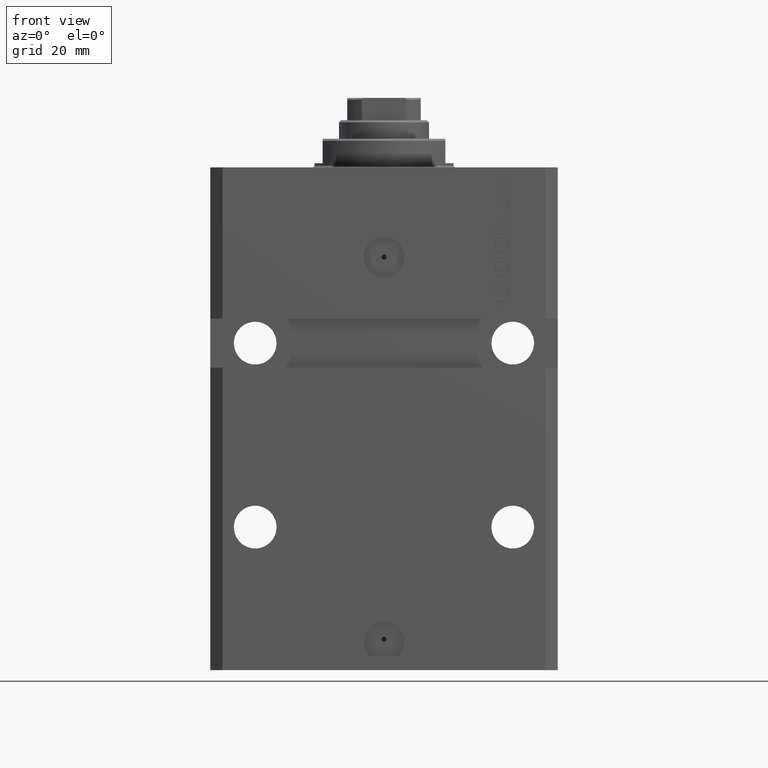
[diagram: clean part render]
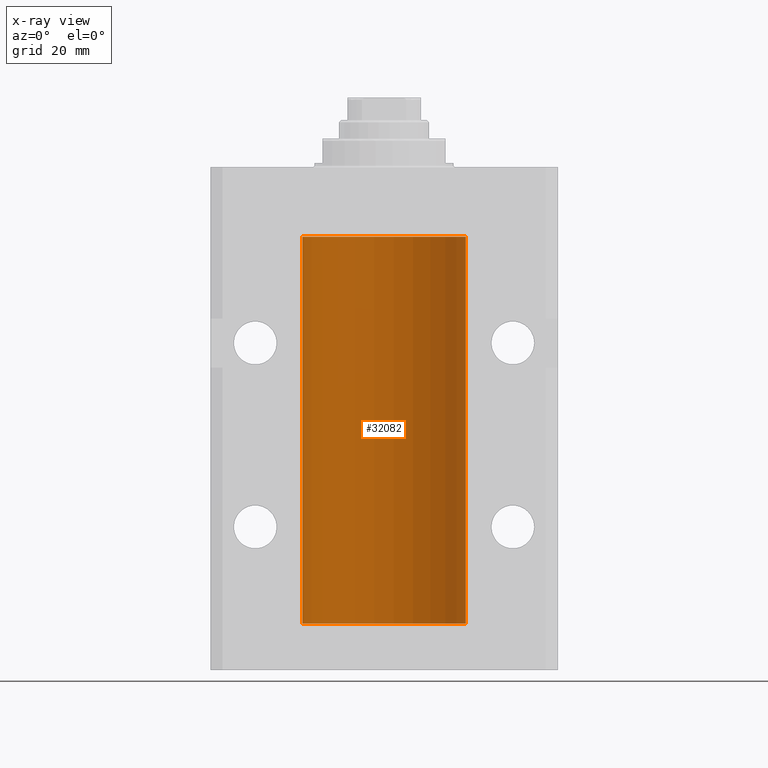
[diagram: x-ray — body ghosted, one internal face saturated and labeled with its STEP entity id]
A machine part, front view, then the same camera in x-ray: the body is ghosted and one INTERNAL B-rep face — a face not visible from any outside direction — is saturated and labeled: STEP entity #32082.
In plain terms, the highlighted cylindrical surface (partial cylindrical patch) has radius 20 mm, axis along (0, 0, 1).
Its self-contained STEP definition (entity closure, byte-faithful):
#114 = EDGE_CURVE ( 'NONE', #39670, #34580, #12778, .T. ) ;
#201 = VECTOR ( 'NONE', #36816, 1000.000000000000000 ) ;
#279 = CARTESIAN_POINT ( 'NONE',  ( 19.99769474220010679, 0.3253030616682399123, -23.44140633897632142 ) ) ;
#491 = ORIENTED_EDGE ( 'NONE', *, *, #42831, .F. ) ;
#1088 = DIRECTION ( 'NONE',  ( -0.000000000000000000, -0.000000000000000000, 1.000000000000000000 ) ) ;
#1198 = CARTESIAN_POINT ( 'NONE',  ( 19.99999999999999645, 0.08261455565447944904, -24.62499999999999289 ) ) ;
#1549 = VERTEX_POINT ( 'NONE', #23585 ) ;
#1672 = CARTESIAN_POINT ( 'NONE',  ( 20.00000000000000000, 2.480610556832390753E-15, -24.62500000000000000 ) ) ;
#1987 = LINE ( 'NONE', #38994, #12067 ) ;
#2161 = DIRECTION ( 'NONE',  ( 1.000000000000000000, 0.000000000000000000, 0.000000000000000000 ) ) ;
#2250 = DIRECTION ( 'NONE',  ( 1.000000000000000000, 0.000000000000000000, 0.000000000000000000 ) ) ;
#2469 = DIRECTION ( 'NONE',  ( -0.000000000000000000, -0.000000000000000000, 1.000000000000000000 ) ) ;
#4190 = CIRCLE ( 'NONE', #4965, 20.00000000000000000 ) ;
#4317 = VECTOR ( 'NONE', #45147, 1000.000000000000000 ) ;
#4401 = CARTESIAN_POINT ( 'NONE',  ( 19.99638788807192924, 0.3844440352705359998, -109.4994805898647883 ) ) ;
#4637 = B_SPLINE_CURVE_WITH_KNOTS ( 'NONE', 3,
 ( #8079, #18291, #26305, #279, #19247, #44325 ),
 .UNSPECIFIED., .F., .F.,
 ( 4, 2, 4 ),
 ( 0.0009772989342736271377, 0.001465726722058853775, 0.001954154509844080196 ),
 .UNSPECIFIED. ) ;
#4965 = AXIS2_PLACEMENT_3D ( 'NONE', #20651, #23814, #2161 ) ;
#5359 = CARTESIAN_POINT ( 'NONE',  ( 19.99947351343144675, 0.1636818329565332686, -24.60872855715644292 ) ) ;
#5378 = CARTESIAN_POINT ( 'NONE',  ( 19.99766100389833312, 0.3150982863324784944, -109.5459443824127987 ) ) ;
#5714 = VERTEX_POINT ( 'NONE', #40265 ) ;
#5871 = CIRCLE ( 'NONE', #15183, 20.00000000000000000 ) ;
#8079 = CARTESIAN_POINT ( 'NONE',  ( 19.99023198964909298, 0.6250000000081508134, -23.99999999999910472 ) ) ;
#8661 = LINE ( 'NONE', #41524, #4317 ) ;
#9470 = CARTESIAN_POINT ( 'NONE',  ( 19.99256353007439202, 0.5574106582031160828, -24.32639035180114817 ) ) ;
#9800 = FACE_OUTER_BOUND ( 'NONE', #46956, .T. ) ;
#10352 = VERTEX_POINT ( 'NONE', #14486 ) ;
#10848 = CARTESIAN_POINT ( 'NONE',  ( 20.00000000000010303, 3.555666352936568165E-13, -108.3749999999966747 ) ) ;
#11935 = CARTESIAN_POINT ( 'NONE',  ( 19.99023198964909298, 0.6250000000081574747, -108.9999999999991047 ) ) ;
#12067 = VECTOR ( 'NONE', #2469, 1000.000000000000000 ) ;
#12778 = LINE ( 'NONE', #19823, #38755 ) ;
#13057 = ORIENTED_EDGE ( 'NONE', *, *, #33081, .T. ) ;
#13339 = EDGE_CURVE ( 'NONE', #1549, #26252, #24671, .T. ) ;
#13624 = CARTESIAN_POINT ( 'NONE',  ( 20.00000000000010303, 3.555666352936568165E-13, -108.3749999999966747 ) ) ;
#13782 = ORIENTED_EDGE ( 'NONE', *, *, #13339, .T. ) ;
#13833 = ORIENTED_EDGE ( 'NONE', *, *, #29073, .F. ) ;
#13884 = ORIENTED_EDGE ( 'NONE', *, *, #18469, .T. ) ;
#13926 = CARTESIAN_POINT ( 'NONE',  ( 0.000000000000000000, 0.000000000000000000, -111.5999999999999943 ) ) ;
#14486 = CARTESIAN_POINT ( 'NONE',  ( 20.00000000000000000, -4.058908006348821872E-15, -109.6250000000000000 ) ) ;
#14711 = VERTEX_POINT ( 'NONE', #47260 ) ;
#15183 = AXIS2_PLACEMENT_3D ( 'NONE', #31517, #31029, #45646 ) ;
#15577 = CARTESIAN_POINT ( 'NONE',  ( 19.99947351343144319, 0.1636818329565372654, -109.6087285571564536 ) ) ;
#15984 = B_SPLINE_CURVE_WITH_KNOTS ( 'NONE', 3,
 ( #38214, #46232, #15577, #5378, #4401, #23106, #19471, #11935 ),
 .UNSPECIFIED., .F., .F.,
 ( 4, 2, 2, 4 ),
 ( 3.944467879762244826E-18, 0.0002443247335684012008, 0.0004886494671367983900, 0.0009772989342736221503 ),
 .UNSPECIFIED. ) ;
#16033 = CARTESIAN_POINT ( 'NONE',  ( 19.99638788807192924, 0.3844440352705381647, -24.49948058986479893 ) ) ;
#16276 = CARTESIAN_POINT ( 'NONE',  ( 20.00000000000000000, 2.480610556832390753E-15, -24.62500000000000000 ) ) ;
#17978 = CARTESIAN_POINT ( 'NONE',  ( 19.99769474220011034, 0.3253030616682413001, -108.4414063389763072 ) ) ;
#18291 = CARTESIAN_POINT ( 'NONE',  ( 19.99023198964935588, 0.6249999999995746736, -23.83696384779806721 ) ) ;
#18469 = EDGE_CURVE ( 'NONE', #5714, #39670, #27657, .T. ) ;
#19247 = CARTESIAN_POINT ( 'NONE',  ( 19.99999999999999645, 0.1631318418333146114, -23.37500000000016698 ) ) ;
#19471 = CARTESIAN_POINT ( 'NONE',  ( 19.99023198964934167, 0.6250000000002757794, -109.1631101482932706 ) ) ;
#19823 = CARTESIAN_POINT ( 'NONE',  ( 20.00000000000000000, 0.000000000000000000, -111.5999999999999943 ) ) ;
#20597 = VERTEX_POINT ( 'NONE', #33462 ) ;
#20651 = CARTESIAN_POINT ( 'NONE',  ( 0.000000000000000000, 0.000000000000000000, -111.5999999999999943 ) ) ;
#21021 = CARTESIAN_POINT ( 'NONE',  ( 20.00000000000000000, 0.000000000000000000, -111.5999999999999943 ) ) ;
#21062 = ORIENTED_EDGE ( 'NONE', *, *, #38192, .T. ) ;
#23014 = AXIS2_PLACEMENT_3D ( 'NONE', #13926, #42894, #2250 ) ;
#23106 = CARTESIAN_POINT ( 'NONE',  ( 19.99256353007439202, 0.5574106582031174151, -109.3263903518011517 ) ) ;
#23585 = CARTESIAN_POINT ( 'NONE',  ( 20.00000000000010303, 3.555666340528858977E-13, -23.37499999999667111 ) ) ;
#23814 = DIRECTION ( 'NONE',  ( 0.000000000000000000, 0.000000000000000000, 1.000000000000000000 ) ) ;
#24671 = LINE ( 'NONE', #21021, #201 ) ;
#25162 = EDGE_CURVE ( 'NONE', #26252, #35124, #5871, .T. ) ;
#26032 = CARTESIAN_POINT ( 'NONE',  ( 20.00000000000000000, 0.000000000000000000, -17.00000000000000000 ) ) ;
#26252 = VERTEX_POINT ( 'NONE', #26032 ) ;
#26305 = CARTESIAN_POINT ( 'NONE',  ( 19.99253733128256272, 0.5586305947778931191, -23.67476036735258305 ) ) ;
#27657 = B_SPLINE_CURVE_WITH_KNOTS ( 'NONE', 3,
 ( #31123, #45988, #47916, #17978, #44246, #13624 ),
 .UNSPECIFIED., .F., .F.,
 ( 4, 2, 4 ),
 ( 0.0009772989342736221503, 0.001465726722058849005, 0.001954154509844075859 ),
 .UNSPECIFIED. ) ;
#28851 = ORIENTED_EDGE ( 'NONE', *, *, #25162, .T. ) ;
#29073 = EDGE_CURVE ( 'NONE', #20597, #35124, #8661, .T. ) ;
#29548 = CARTESIAN_POINT ( 'NONE',  ( 20.00000000000000000, 0.000000000000000000, -111.5999999999999943 ) ) ;
#30865 = CARTESIAN_POINT ( 'NONE',  ( 19.99023198964933812, 0.6250000000002681189, -24.16311014829328130 ) ) ;
#31029 = DIRECTION ( 'NONE',  ( 0.000000000000000000, 0.000000000000000000, 1.000000000000000000 ) ) ;
#31040 = VERTEX_POINT ( 'NONE', #29548 ) ;
#31102 = CARTESIAN_POINT ( 'NONE',  ( 19.99023198964909298, 0.6250000000081508134, -23.99999999999910472 ) ) ;
#31123 = CARTESIAN_POINT ( 'NONE',  ( 19.99023198964909298, 0.6250000000081574747, -108.9999999999991047 ) ) ;
#31517 = CARTESIAN_POINT ( 'NONE',  ( 0.000000000000000000, 0.000000000000000000, -17.00000000000000000 ) ) ;
#32030 = CARTESIAN_POINT ( 'NONE',  ( -20.00000000000000000, 2.449293598294706513E-15, -17.00000000000000000 ) ) ;
#32082 = ADVANCED_FACE ( 'NONE', ( #9800 ), #39503, .F. ) ;
#33081 = EDGE_CURVE ( 'NONE', #14711, #1549, #4637, .T. ) ;
#33267 = ORIENTED_EDGE ( 'NONE', *, *, #47475, .T. ) ;
#33462 = CARTESIAN_POINT ( 'NONE',  ( -20.00000000000000000, 2.449293598294706513E-15, -111.5999999999999943 ) ) ;
#34288 = CARTESIAN_POINT ( 'NONE',  ( 19.99766100389832957, 0.3150982863324739425, -24.54594438241279164 ) ) ;
#34580 = VERTEX_POINT ( 'NONE', #1672 ) ;
#35124 = VERTEX_POINT ( 'NONE', #32030 ) ;
#36816 = DIRECTION ( 'NONE',  ( -0.000000000000000000, -0.000000000000000000, 1.000000000000000000 ) ) ;
#38192 = EDGE_CURVE ( 'NONE', #34580, #14711, #41594, .T. ) ;
#38214 = CARTESIAN_POINT ( 'NONE',  ( 20.00000000000000000, -4.058908006348821872E-15, -109.6250000000000000 ) ) ;
#38755 = VECTOR ( 'NONE', #1088, 1000.000000000000000 ) ;
#38994 = CARTESIAN_POINT ( 'NONE',  ( 20.00000000000000000, 0.000000000000000000, -111.5999999999999943 ) ) ;
#39503 = CYLINDRICAL_SURFACE ( 'NONE', #23014, 20.00000000000000000 ) ;
#39670 = VERTEX_POINT ( 'NONE', #10848 ) ;
#40265 = CARTESIAN_POINT ( 'NONE',  ( 19.99023198964909298, 0.6250000000081574747, -108.9999999999991047 ) ) ;
#40609 = ORIENTED_EDGE ( 'NONE', *, *, #114, .T. ) ;
#40757 = ORIENTED_EDGE ( 'NONE', *, *, #46478, .T. ) ;
#41524 = CARTESIAN_POINT ( 'NONE',  ( -20.00000000000000000, 2.449293598294706513E-15, -111.5999999999999943 ) ) ;
#41594 = B_SPLINE_CURVE_WITH_KNOTS ( 'NONE', 3,
 ( #16276, #1198, #5359, #34288, #16033, #9470, #30865, #31102 ),
 .UNSPECIFIED., .F., .F.,
 ( 4, 2, 2, 4 ),
 ( 3.558729249985022577E-18, 0.0002443247335684094949, 0.0004886494671368154120, 0.0009772989342736271377 ),
 .UNSPECIFIED. ) ;
#42831 = EDGE_CURVE ( 'NONE', #31040, #20597, #4190, .T. ) ;
#42894 = DIRECTION ( 'NONE',  ( -0.000000000000000000, -0.000000000000000000, 1.000000000000000000 ) ) ;
#44246 = CARTESIAN_POINT ( 'NONE',  ( 19.99999999999999645, 0.1631318418333158327, -108.3750000000001705 ) ) ;
#44325 = CARTESIAN_POINT ( 'NONE',  ( 20.00000000000010303, 3.555666340528858977E-13, -23.37499999999667111 ) ) ;
#45147 = DIRECTION ( 'NONE',  ( -0.000000000000000000, -0.000000000000000000, 1.000000000000000000 ) ) ;
#45646 = DIRECTION ( 'NONE',  ( 1.000000000000000000, 0.000000000000000000, 0.000000000000000000 ) ) ;
#45988 = CARTESIAN_POINT ( 'NONE',  ( 19.99023198964936299, 0.6249999999995806688, -108.8369638477980885 ) ) ;
#46232 = CARTESIAN_POINT ( 'NONE',  ( 19.99999999999999645, 0.08261455565447825555, -109.6249999999999574 ) ) ;
#46478 = EDGE_CURVE ( 'NONE', #31040, #10352, #1987, .T. ) ;
#46956 = EDGE_LOOP ( 'NONE', ( #13833, #491, #40757, #33267, #13884, #40609, #21062, #13057, #13782, #28851 ) ) ;
#47260 = CARTESIAN_POINT ( 'NONE',  ( 19.99023198964909298, 0.6250000000081508134, -23.99999999999910472 ) ) ;
#47475 = EDGE_CURVE ( 'NONE', #10352, #5714, #15984, .T. ) ;
#47916 = CARTESIAN_POINT ( 'NONE',  ( 19.99253733128256627, 0.5586305947779004466, -108.6747603673526044 ) ) ;